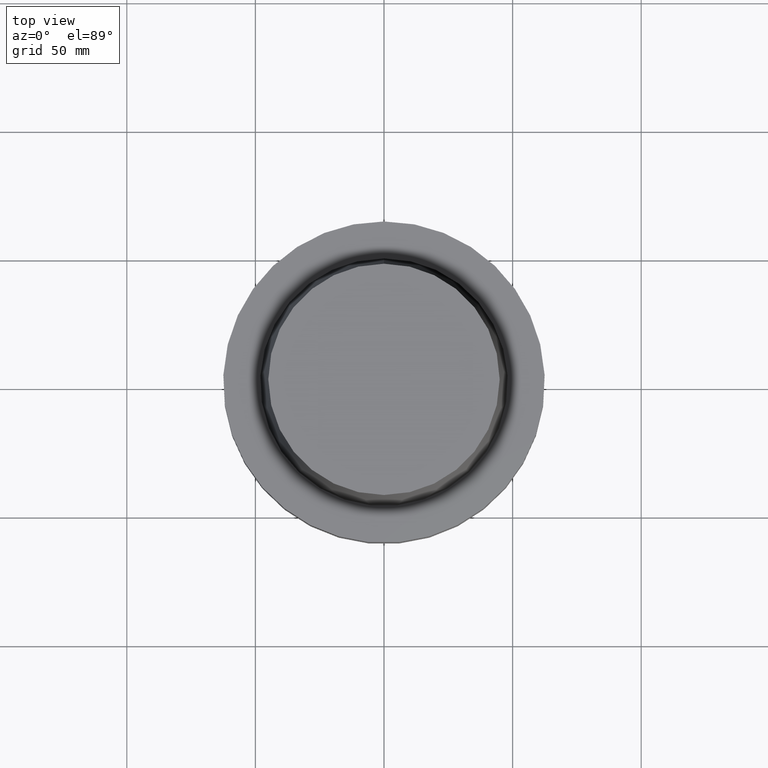
[diagram: clean part render]
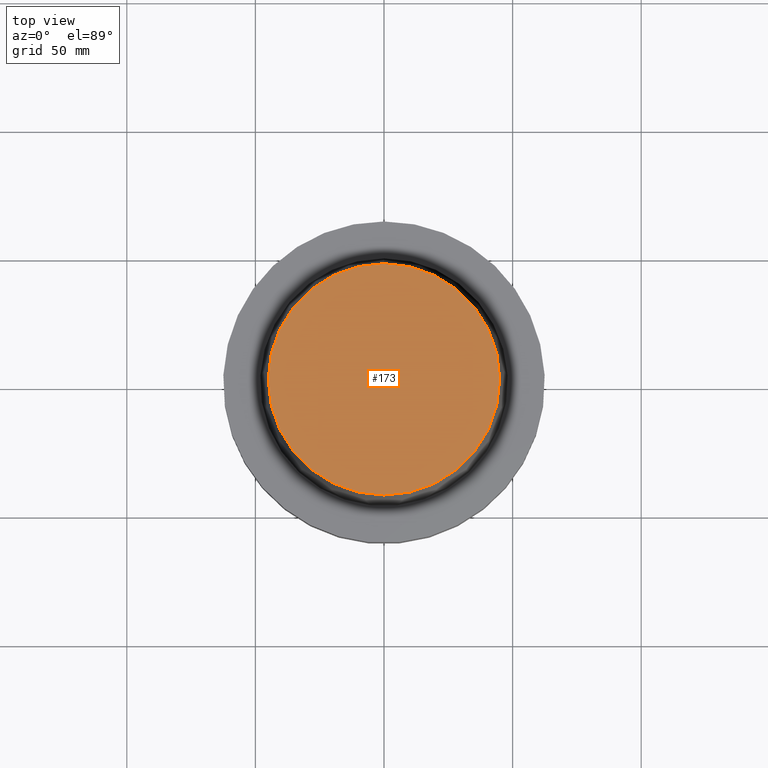
[diagram: same view with one face highlighted and labeled with its STEP entity id]
A machine part, top view. The second image highlights one B-rep face of the part: STEP entity #173.
In plain terms, the highlighted planar face has unit normal (-0, -0, 1).
Its self-contained STEP definition (entity closure, byte-faithful):
#173=ADVANCED_FACE('Unnamed[1]',(#362),#363,.T.);
#197=EDGE_CURVE('Unnamed[1]',#401,#401,#402,.T.);
#362=FACE_OUTER_BOUND('',#596,.T.);
#363=PLANE('',#597);
#401=VERTEX_POINT('',#644);
#402=CIRCLE('',#645,44.977939879759);
#596=EDGE_LOOP('',(#808));
#597=AXIS2_PLACEMENT_3D('',#809,#810,#811);
#644=CARTESIAN_POINT('',(-3.85763741731416E-015,44.9779398797591,62.9999999999999));
#645=AXIS2_PLACEMENT_3D('',#854,#855,#856);
#808=ORIENTED_EDGE('',*,*,#197,.F.);
#809=CARTESIAN_POINT('',(-3.85763741731416E-015,22.4889699398796,62.9999999999999));
#810=DIRECTION('',(-6.12323399573677E-017,-1.22464679914735E-016,1.0));
#811=DIRECTION('',(1.23259516440783E-032,-1.0,-1.22464679914735E-016));
#854=CARTESIAN_POINT('',(-3.85763741731416E-015,4.90847251653719E-014,62.9999999999999));
#855=DIRECTION('',(6.12323399573677E-017,-7.02088891513837E-016,-1.0));
#856=DIRECTION('',(3.81633929546977E-032,1.0,-7.02088891513837E-016));